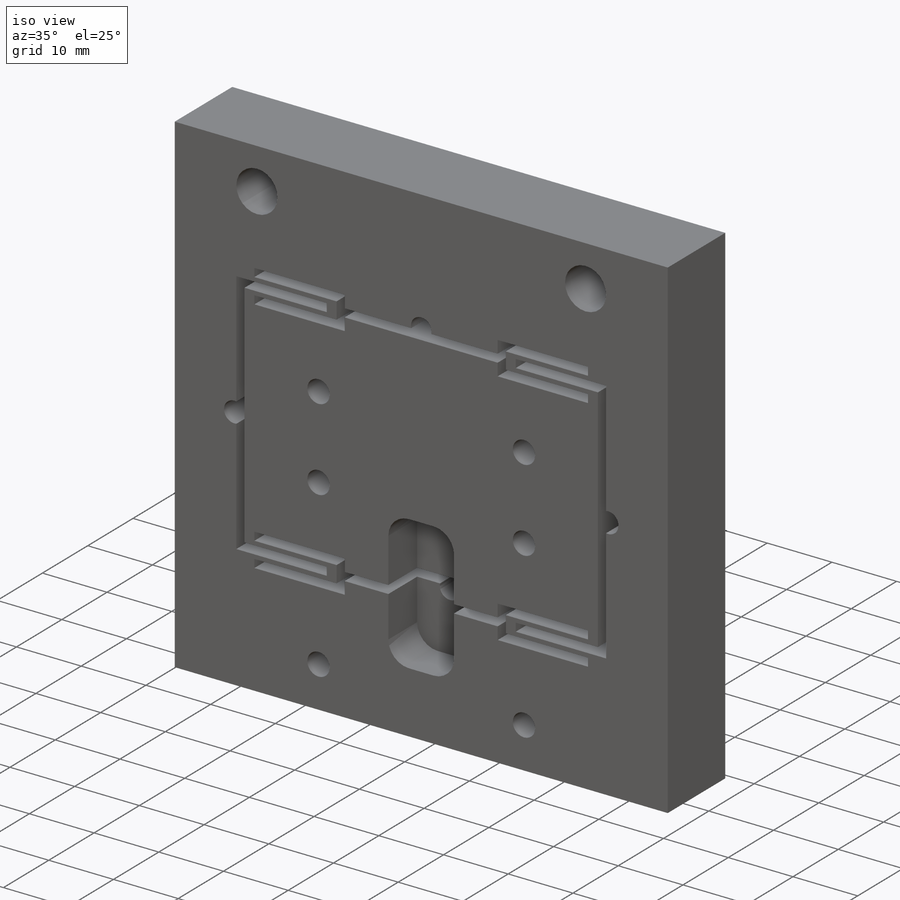
[diagram: iso view]
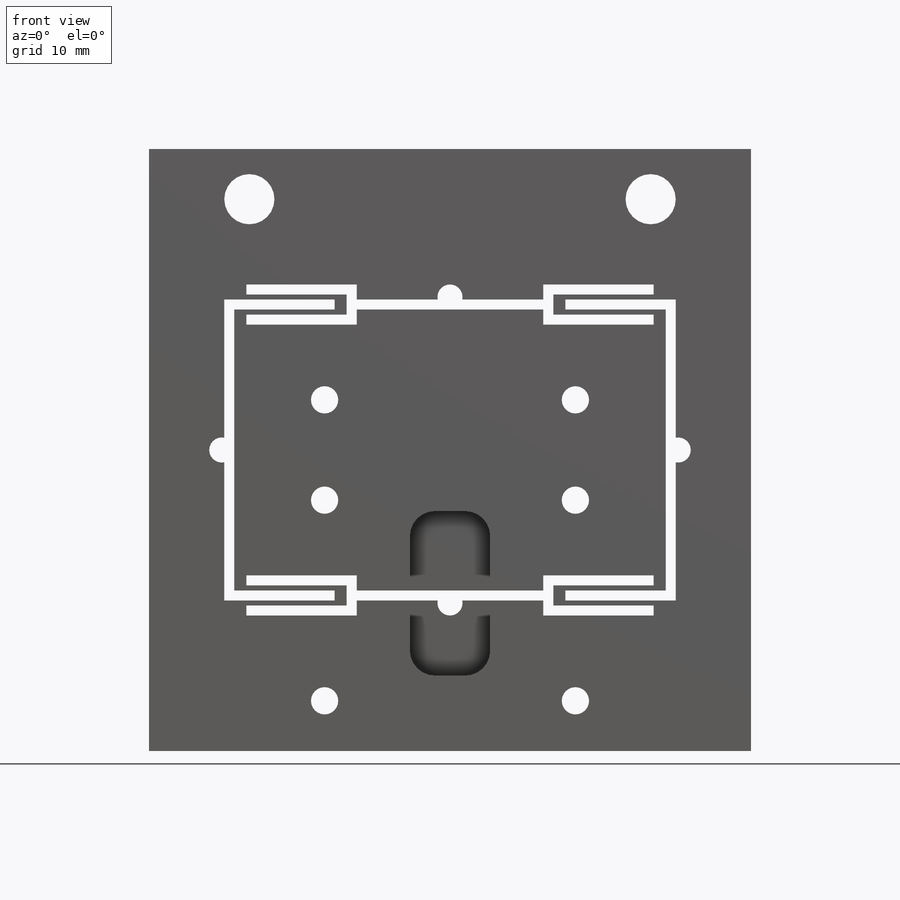
[diagram: front view]
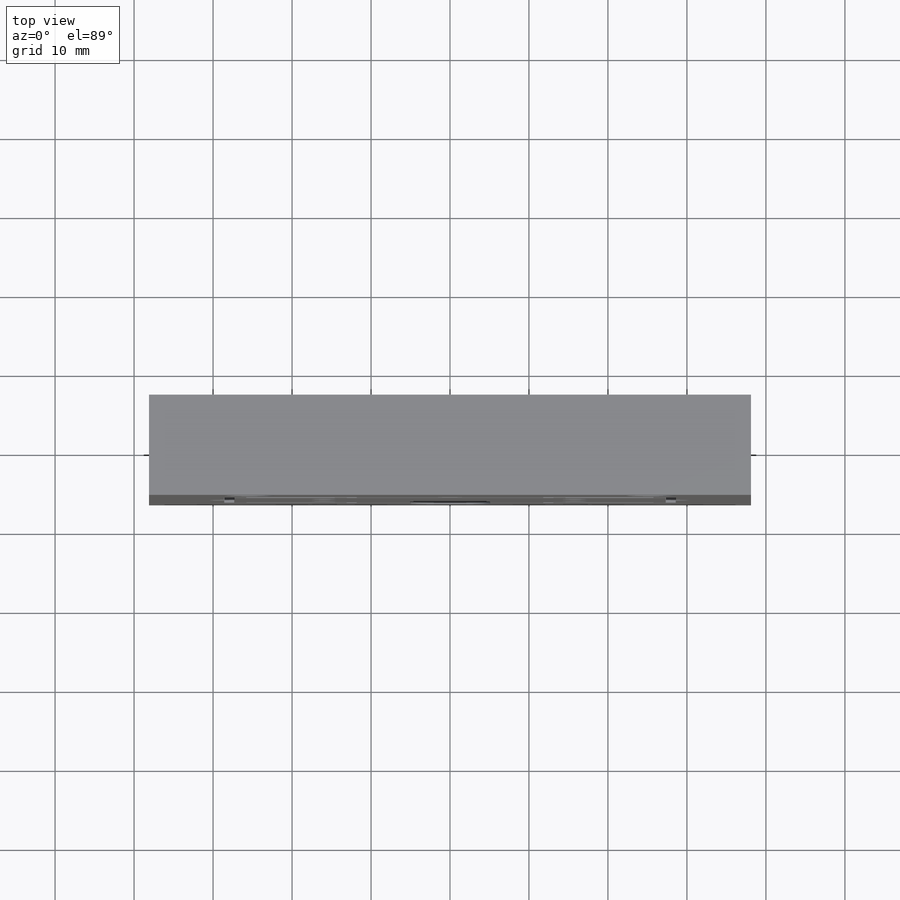
[diagram: top view]
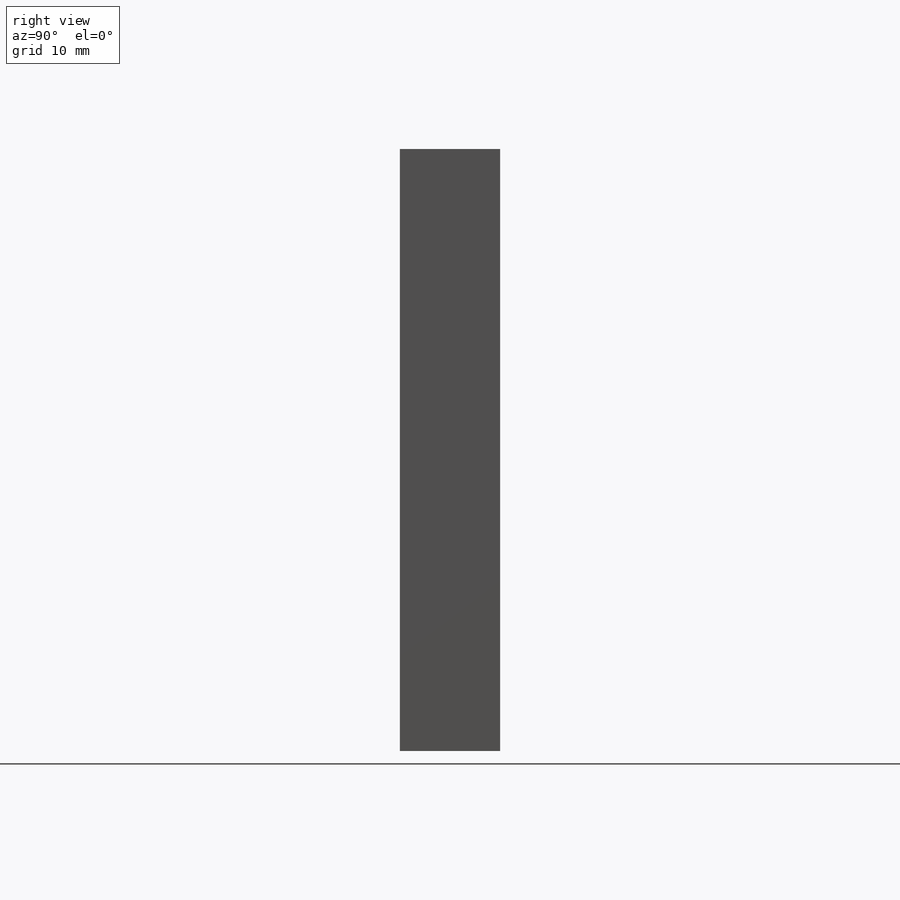
[diagram: right view]
SOLIDWORKS PART (.sldprt)
format: sldprt  version: not decoded by parser v0  size: 478,720 bytes
history: native  units: mm
features: sketch x9, thread x6, cut_extrude x4, fillet x4, mirror x2, hole x2, material x1, extrude x1 (+12 scaffold rows collapsed)
feature tree (41):
  scaffold x12  (default folders/planes/origin — collapsed)
  material  "Material <not specified>"
  sketch  "Sketch1"  dims[D1=38.1mm D2=38.1mm D3=38.1mm D4=38.1mm]
  extrude  "Boss-Extrude1"  Depth=12.7mm
  sketch  "Sketch2"  dims[D1=38.1mm D2=19.05mm D3=9.525mm D4=1.27mm D5=12.7mm D6=1.27mm D7=1.27mm]
  cut_extrude  "Cut-Extrude1"  [1 undecoded]
  mirror  "Mirror1"
  sketch  "Sketch3"  dims[D1=0.635mm D2=0.635mm D3=1.27mm D4=1.27mm D5=1.524mm D6=1.524mm D7=1.27mm]
  cut_extrude  "Cut-Extrude2"  [1 undecoded]
  mirror  "Mirror2"
  hole  "1/4 (0.25) Diameter Hole1"  Diameter=6.35mm Depth=12.7mm
  sketch  "Sketch5"  dims[D1=25.4mm D2=25.4mm D3=6.35mm]
  sketch  "Sketch4"  dims[hole-wizard template sketch: 61 standard entries collapsed; hole parameters above]
  hole  "#8-32 Tapped Hole1"  Diameter=3.4544mm Depth=12.7mm
  sketch  "Sketch7"  dims[D1=15.875mm D2=15.875mm D3=6.35mm D4=6.35mm D5=6.35mm]
  sketch  "Sketch6"  dims[hole-wizard template sketch: 60 standard entries collapsed; hole parameters kept: c18.Thru Tap Drill Depth=12.7mm]
  thread  "Hole Thread1"  Diameter=4.1656mm  [1 undecoded]
  thread  "Hole Thread2"  Diameter=4.1656mm  [1 undecoded]
  thread  "Hole Thread3"  Diameter=4.1656mm  [1 undecoded]
  thread  "Hole Thread4"  Diameter=4.1656mm  [1 undecoded]
  thread  "Hole Thread5"  Diameter=4.1656mm  [1 undecoded]
  thread  "Hole Thread6"  Diameter=4.1656mm  [1 undecoded]
  sketch  "Sketch8"  dims[D1=5.08mm D2=5.08mm D3=20.828mm D4=9.525mm]
  cut_extrude  "Cut-Extrude3"  Depth=6.35mm
  fillet  "Fillet1"  Radius=3.175mm
  fillet  "Fillet2"  Radius=3.175mm
  fillet  "Fillet3"  Radius=3.175mm
  fillet  "Fillet4"  Radius=3.175mm
  sketch  "Sketch11"  dims[D1=~1.320413mm]
  cut_extrude  "Cut-Extrude6"  [1 undecoded]
decode coverage: 23 of 28 modeling features carry decoded parameters
note: ~ marks probable driven/reference dimensions
note: 9 parameter values undecoded
summary: no parameter record found for 3 features
note: suppression state not decoded; provenance and decode notes live in map.json
